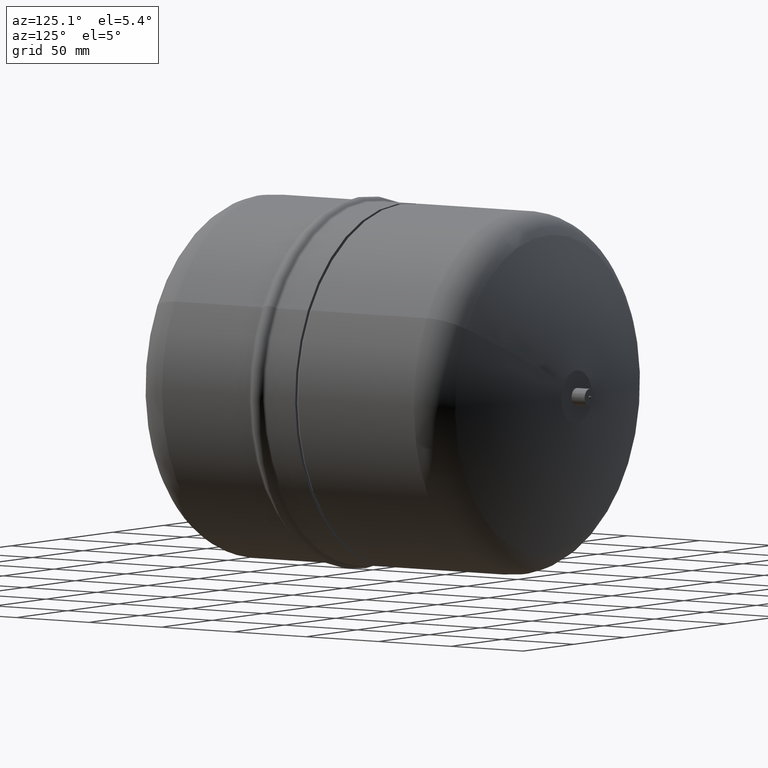
[diagram: clean part render]
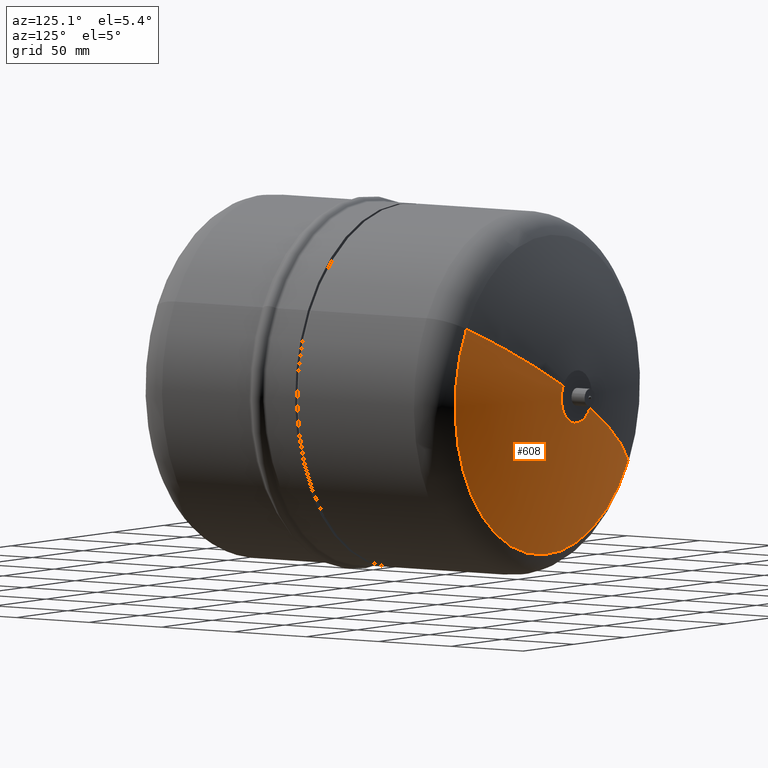
[diagram: same view with one face highlighted and labeled with its STEP entity id]
A machine part, auxiliary view. The second image highlights one B-rep face of the part: STEP entity #608.
In plain terms, the highlighted spherical surface has radius 208 mm.
Its self-contained STEP definition (entity closure, byte-faithful):
#556=AXIS2_PLACEMENT_3D('Circle Axis2P3D',#554,#555,$) ;
#569=AXIS2_PLACEMENT_3D('Sphere Axis2P3D',#566,#567,#568) ;
#573=AXIS2_PLACEMENT_3D('Circle Axis2P3D',#571,#572,$) ;
#587=AXIS2_PLACEMENT_3D('Circle Axis2P3D',#585,#586,$) ;
#599=AXIS2_PLACEMENT_3D('Circle Axis2P3D',#597,#598,$) ;
#532=CARTESIAN_POINT('Vertex',(79.4919946383,255.782449305,43.4266745936)) ;
#539=CARTESIAN_POINT('Vertex',(-79.4919946383,255.782449305,-43.4266745936)) ;
#554=CARTESIAN_POINT('Axis2P3D Location',(0.,255.782449305,0.)) ;
#566=CARTESIAN_POINT('Axis2P3D Location',(-7.1054273576E-015,68.5415704292,0.)) ;
#571=CARTESIAN_POINT('Axis2P3D Location',(-7.1054273576E-015,68.5415704292,0.)) ;
#575=CARTESIAN_POINT('Vertex',(13.1637384284,276.,7.19138307906)) ;
#582=CARTESIAN_POINT('Vertex',(-13.1637384284,276.,-7.19138307906)) ;
#585=CARTESIAN_POINT('Axis2P3D Location',(-7.1054273576E-015,68.5415704292,0.)) ;
#597=CARTESIAN_POINT('Axis2P3D Location',(-7.1054273576E-015,276.,0.)) ;
#555=DIRECTION('Axis2P3D Direction',(0.,-1.,0.)) ;
#567=DIRECTION('Axis2P3D Direction',(0.,-1.,0.)) ;
#568=DIRECTION('Axis2P3D XDirection',(0.87758256189,0.,0.479425538604)) ;
#572=DIRECTION('Axis2P3D Direction',(0.479425538604,0.,-0.87758256189)) ;
#586=DIRECTION('Axis2P3D Direction',(-0.479425538604,0.,0.87758256189)) ;
#598=DIRECTION('Axis2P3D Direction',(0.,-1.,0.)) ;
#603=ORIENTED_EDGE('',*,*,#558,.F.) ;
#604=ORIENTED_EDGE('',*,*,#589,.T.) ;
#605=ORIENTED_EDGE('',*,*,#601,.T.) ;
#606=ORIENTED_EDGE('',*,*,#577,.F.) ;
#608=ADVANCED_FACE('Hauptk\X2\00F6\X0\rper',(#607),#570,.T.) ;
#557=CIRCLE('generated circle',#556,90.5806451613) ;
#574=CIRCLE('generated circle',#573,208.) ;
#588=CIRCLE('generated circle',#587,208.) ;
#600=CIRCLE('generated circle',#599,15.) ;
#558=EDGE_CURVE('',#540,#533,#557,.T.) ;
#577=EDGE_CURVE('',#533,#576,#574,.F.) ;
#589=EDGE_CURVE('',#540,#583,#588,.F.) ;
#601=EDGE_CURVE('',#583,#576,#600,.T.) ;
#602=EDGE_LOOP('',(#603,#604,#605,#606)) ;
#607=FACE_OUTER_BOUND('',#602,.T.) ;
#570=SPHERICAL_SURFACE('',#569,208.) ;
#533=VERTEX_POINT('',#532) ;
#540=VERTEX_POINT('',#539) ;
#576=VERTEX_POINT('',#575) ;
#583=VERTEX_POINT('',#582) ;